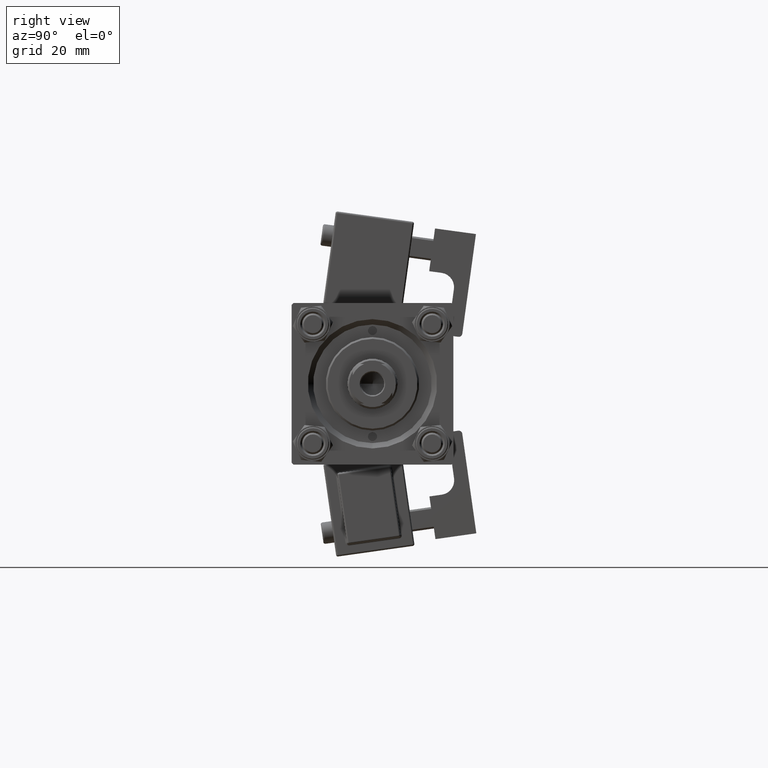
[diagram: clean part render]
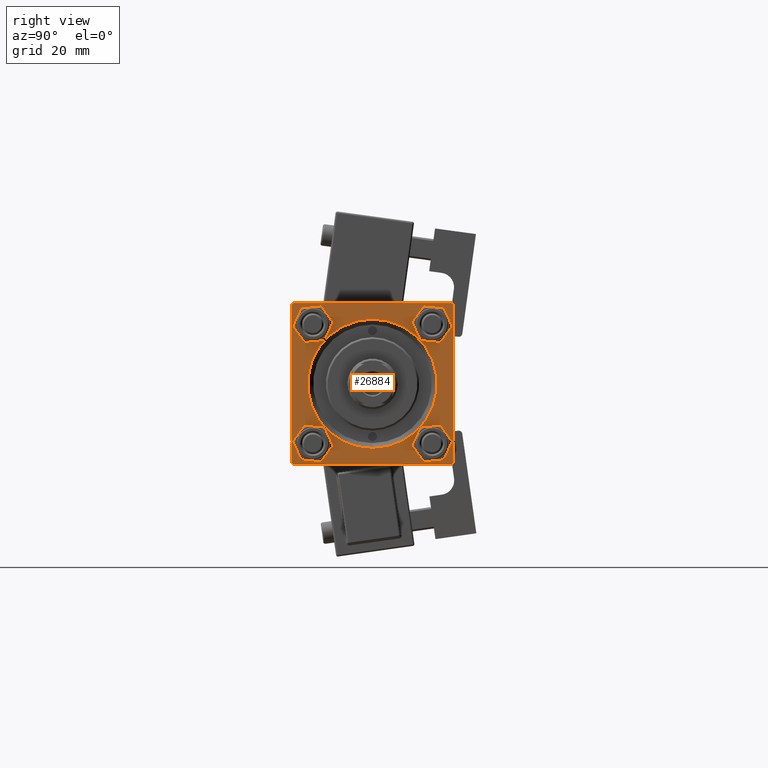
[diagram: same view with one face highlighted and labeled with its STEP entity id]
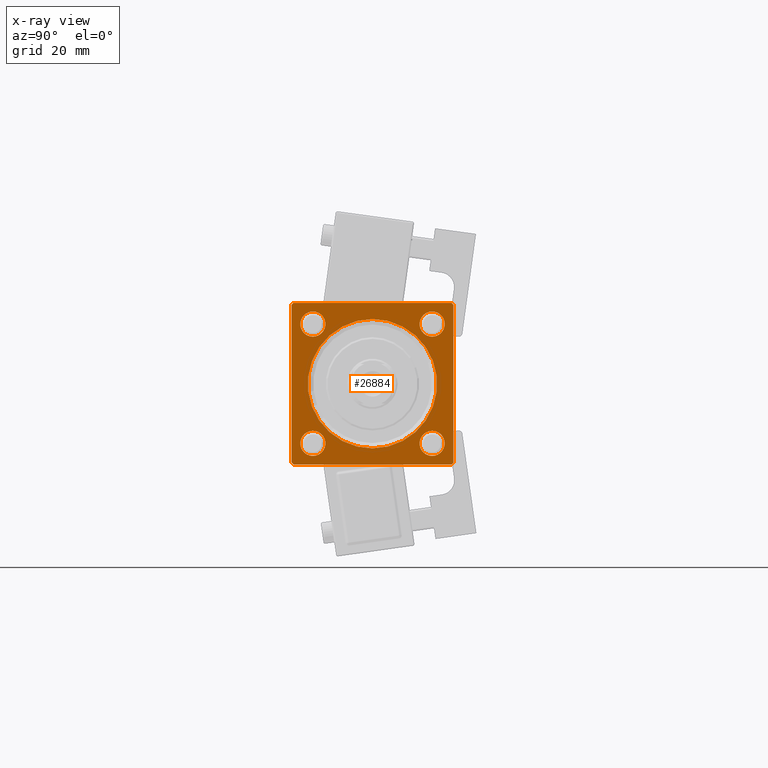
[diagram: x-ray of the same camera — body ghosted, the highlighted face saturated]
A machine part, right view. The second image highlights one B-rep face of the part: STEP entity #26884.
The next image is the same camera in x-ray: the body ghosted, the highlighted face saturated — about 0% of this face is hidden behind the body in this view.
In plain terms, the highlighted planar face has unit normal (-1, 0, 0).
Its self-contained STEP definition (entity closure, byte-faithful):
#205 = LINE ( 'NONE', #24297, #32339 ) ;
#1216 = EDGE_CURVE ( 'NONE', #27357, #33606, #16940, .T. ) ;
#1713 = ORIENTED_EDGE ( 'NONE', *, *, #12166, .T. ) ;
#2265 = LINE ( 'NONE', #51698, #31665 ) ;
#2637 = DIRECTION ( 'NONE',  ( 0.000000000000000000, 0.000000000000000000, -1.000000000000000000 ) ) ;
#2783 = DIRECTION ( 'NONE',  ( 0.000000000000000000, 0.000000000000000000, -1.000000000000000000 ) ) ;
#2899 = CIRCLE ( 'NONE', #21478, 18.00000000000000355 ) ;
#3010 = VERTEX_POINT ( 'NONE', #43632 ) ;
#3663 = VERTEX_POINT ( 'NONE', #22643 ) ;
#3711 = CARTESIAN_POINT ( 'NONE',  ( 123.0000000000000142, -22.49999999999999645, 22.00000000000000711 ) ) ;
#3900 = CARTESIAN_POINT ( 'NONE',  ( 123.0000000000000142, 22.50000000000000355, 21.99999999999997513 ) ) ;
#3919 = ORIENTED_EDGE ( 'NONE', *, *, #32471, .T. ) ;
#4564 = CIRCLE ( 'NONE', #41749, 3.500000000000031086 ) ;
#4748 = DIRECTION ( 'NONE',  ( 0.000000000000000000, 0.000000000000000000, 1.000000000000000000 ) ) ;
#4822 = AXIS2_PLACEMENT_3D ( 'NONE', #26013, #26271, #18317 ) ;
#4923 = VERTEX_POINT ( 'NONE', #49707 ) ;
#5111 = EDGE_LOOP ( 'NONE', ( #21749, #28203 ) ) ;
#5532 = DIRECTION ( 'NONE',  ( -1.000000000000000000, 0.000000000000000000, -0.000000000000000000 ) ) ;
#6380 = VERTEX_POINT ( 'NONE', #3711 ) ;
#6534 = CARTESIAN_POINT ( 'NONE',  ( 123.0000000000000142, 16.59999999999999787, -16.60000000000000497 ) ) ;
#6763 = DIRECTION ( 'NONE',  ( 0.000000000000000000, 0.000000000000000000, 1.000000000000000000 ) ) ;
#7330 = DIRECTION ( 'NONE',  ( 0.000000000000000000, 0.000000000000000000, 1.000000000000000000 ) ) ;
#7448 = LINE ( 'NONE', #23576, #39950 ) ;
#7617 = CARTESIAN_POINT ( 'NONE',  ( 123.0000000000000142, 0.000000000000000000, 0.000000000000000000 ) ) ;
#7912 = LINE ( 'NONE', #40172, #43430 ) ;
#8178 = EDGE_CURVE ( 'NONE', #45108, #33138, #16360, .T. ) ;
#8264 = DIRECTION ( 'NONE',  ( -1.000000000000000000, 0.000000000000000000, -0.000000000000000000 ) ) ;
#8368 = DIRECTION ( 'NONE',  ( -0.000000000000000000, 0.000000000000000000, 1.000000000000000000 ) ) ;
#8862 = EDGE_CURVE ( 'NONE', #33606, #27357, #2899, .T. ) ;
#8964 = VERTEX_POINT ( 'NONE', #11835 ) ;
#9673 = CARTESIAN_POINT ( 'NONE',  ( 123.0000000000000142, -16.59999999999999076, 16.60000000000000853 ) ) ;
#9683 = DIRECTION ( 'NONE',  ( -1.000000000000000000, 0.000000000000000000, -0.000000000000000000 ) ) ;
#9929 = DIRECTION ( 'NONE',  ( 0.000000000000000000, 0.000000000000000000, 1.000000000000000000 ) ) ;
#10331 = ORIENTED_EDGE ( 'NONE', *, *, #33982, .T. ) ;
#10718 = CARTESIAN_POINT ( 'NONE',  ( 123.0000000000000142, 16.59999999999999787, 16.60000000000000497 ) ) ;
#11000 = DIRECTION ( 'NONE',  ( -1.000000000000000000, 0.000000000000000000, -0.000000000000000000 ) ) ;
#11318 = EDGE_CURVE ( 'NONE', #35204, #19802, #26637, .T. ) ;
#11484 = VERTEX_POINT ( 'NONE', #48751 ) ;
#11540 = FACE_OUTER_BOUND ( 'NONE', #28208, .T. ) ;
#11835 = CARTESIAN_POINT ( 'NONE',  ( 123.0000000000000142, -21.99999999999998224, -22.50000000000000000 ) ) ;
#12057 = FACE_BOUND ( 'NONE', #5111, .T. ) ;
#12166 = EDGE_CURVE ( 'NONE', #33138, #45108, #4564, .T. ) ;
#12217 = DIRECTION ( 'NONE',  ( 0.000000000000000000, 0.000000000000000000, 1.000000000000000000 ) ) ;
#12332 = VERTEX_POINT ( 'NONE', #23920 ) ;
#12920 = DIRECTION ( 'NONE',  ( 0.000000000000000000, -0.7071067811865573427, 0.7071067811865378028 ) ) ;
#13891 = EDGE_LOOP ( 'NONE', ( #47781, #39058 ) ) ;
#14433 = LINE ( 'NONE', #18663, #43249 ) ;
#15496 = FACE_BOUND ( 'NONE', #26851, .T. ) ;
#15530 = DIRECTION ( 'NONE',  ( -1.000000000000000000, 0.000000000000000000, -0.000000000000000000 ) ) ;
#16360 = CIRCLE ( 'NONE', #44232, 3.500000000000031086 ) ;
#16771 = DIRECTION ( 'NONE',  ( 0.000000000000000000, 0.000000000000000000, 1.000000000000000000 ) ) ;
#16940 = CIRCLE ( 'NONE', #49038, 18.00000000000000355 ) ;
#17245 = DIRECTION ( 'NONE',  ( 0.000000000000000000, 0.000000000000000000, 1.000000000000000000 ) ) ;
#17780 = EDGE_CURVE ( 'NONE', #3010, #41456, #39622, .T. ) ;
#18317 = DIRECTION ( 'NONE',  ( 0.000000000000000000, 0.000000000000000000, 1.000000000000000000 ) ) ;
#18663 = CARTESIAN_POINT ( 'NONE',  ( 123.0000000000000142, -21.99999999999999645, -22.50000000000000000 ) ) ;
#19187 = CIRCLE ( 'NONE', #4822, 3.500000000000031086 ) ;
#19661 = EDGE_LOOP ( 'NONE', ( #49094, #39878 ) ) ;
#19731 = PLANE ( 'NONE',  #43355 ) ;
#19802 = VERTEX_POINT ( 'NONE', #21472 ) ;
#19993 = FACE_BOUND ( 'NONE', #39065, .T. ) ;
#19994 = CARTESIAN_POINT ( 'NONE',  ( 123.0000000000000142, -16.59999999999999076, -16.60000000000000853 ) ) ;
#20575 = DIRECTION ( 'NONE',  ( -0.000000000000000000, 0.7071067811865573427, 0.7071067811865378028 ) ) ;
#20615 = CARTESIAN_POINT ( 'NONE',  ( 123.0000000000000142, 16.59999999999999787, -13.09999999999997300 ) ) ;
#20717 = AXIS2_PLACEMENT_3D ( 'NONE', #9673, #30563, #37962 ) ;
#21226 = DIRECTION ( 'NONE',  ( -1.000000000000000000, 0.000000000000000000, -0.000000000000000000 ) ) ;
#21472 = CARTESIAN_POINT ( 'NONE',  ( 123.0000000000000142, -16.59999999999999076, 20.10000000000003695 ) ) ;
#21478 = AXIS2_PLACEMENT_3D ( 'NONE', #7617, #15530, #16771 ) ;
#21749 = ORIENTED_EDGE ( 'NONE', *, *, #29574, .T. ) ;
#21763 = VECTOR ( 'NONE', #24640, 1000.000000000000000 ) ;
#22643 = CARTESIAN_POINT ( 'NONE',  ( 123.0000000000000142, -22.49999999999999645, -21.99999999999997868 ) ) ;
#22747 = LINE ( 'NONE', #38874, #31655 ) ;
#23576 = CARTESIAN_POINT ( 'NONE',  ( 123.0000000000000142, -22.49999999999999645, 22.00000000000000711 ) ) ;
#23825 = EDGE_CURVE ( 'NONE', #3663, #8964, #14433, .T. ) ;
#23920 = CARTESIAN_POINT ( 'NONE',  ( 123.0000000000000142, -21.99999999999998224, 22.49999999999999289 ) ) ;
#24297 = CARTESIAN_POINT ( 'NONE',  ( 123.0000000000000142, 22.50000000000000355, -22.00000000000001066 ) ) ;
#24640 = DIRECTION ( 'NONE',  ( 0.000000000000000000, -1.000000000000000000, -7.709882115452476934E-17 ) ) ;
#26013 = CARTESIAN_POINT ( 'NONE',  ( 123.0000000000000142, -16.59999999999999076, 16.60000000000000853 ) ) ;
#26224 = EDGE_CURVE ( 'NONE', #12332, #6380, #7448, .T. ) ;
#26271 = DIRECTION ( 'NONE',  ( -1.000000000000000000, 0.000000000000000000, -0.000000000000000000 ) ) ;
#26335 = CARTESIAN_POINT ( 'NONE',  ( 123.0000000000000142, 0.000000000000000000, 0.000000000000000000 ) ) ;
#26511 = EDGE_CURVE ( 'NONE', #41361, #4923, #205, .T. ) ;
#26637 = CIRCLE ( 'NONE', #20717, 3.500000000000031086 ) ;
#26727 = AXIS2_PLACEMENT_3D ( 'NONE', #19994, #48550, #7330 ) ;
#26851 = EDGE_LOOP ( 'NONE', ( #51549, #45949 ) ) ;
#26884 = ADVANCED_FACE ( 'NONE', ( #12057, #31654, #19993, #15496, #28215, #11540 ), #19731, .F. ) ;
#27197 = CARTESIAN_POINT ( 'NONE',  ( 123.0000000000000142, 0.000000000000000000, -18.00000000000000355 ) ) ;
#27357 = VERTEX_POINT ( 'NONE', #33153 ) ;
#27591 = CARTESIAN_POINT ( 'NONE',  ( 123.0000000000000142, 16.59999999999999787, 16.60000000000000497 ) ) ;
#28203 = ORIENTED_EDGE ( 'NONE', *, *, #36650, .T. ) ;
#28208 = EDGE_LOOP ( 'NONE', ( #10331, #47904, #47506, #41785, #33548, #3919, #50960, #39188 ) ) ;
#28215 = FACE_BOUND ( 'NONE', #13891, .T. ) ;
#28995 = CIRCLE ( 'NONE', #35724, 3.500000000000031086 ) ;
#29131 = DIRECTION ( 'NONE',  ( -0.000000000000000000, -0.7071067811865573427, -0.7071067811865378028 ) ) ;
#29574 = EDGE_CURVE ( 'NONE', #36515, #11484, #28995, .T. ) ;
#30563 = DIRECTION ( 'NONE',  ( -1.000000000000000000, 0.000000000000000000, -0.000000000000000000 ) ) ;
#30592 = DIRECTION ( 'NONE',  ( 0.000000000000000000, 0.7071067811865425767, -0.7071067811865525687 ) ) ;
#30839 = VECTOR ( 'NONE', #51940, 1000.000000000000000 ) ;
#31654 = FACE_BOUND ( 'NONE', #19661, .T. ) ;
#31655 = VECTOR ( 'NONE', #2637, 1000.000000000000000 ) ;
#31665 = VECTOR ( 'NONE', #2783, 1000.000000000000000 ) ;
#32339 = VECTOR ( 'NONE', #20575, 1000.000000000000000 ) ;
#32471 = EDGE_CURVE ( 'NONE', #33630, #49558, #7912, .T. ) ;
#33109 = CARTESIAN_POINT ( 'NONE',  ( 123.0000000000000142, 22.50000000000000355, -22.49999999999999645 ) ) ;
#33123 = CARTESIAN_POINT ( 'NONE',  ( 123.0000000000000142, 22.00000000000000355, -22.49999999999999645 ) ) ;
#33138 = VERTEX_POINT ( 'NONE', #46042 ) ;
#33153 = CARTESIAN_POINT ( 'NONE',  ( 123.0000000000000142, 2.204364238465235822E-15, 18.00000000000000355 ) ) ;
#33548 = ORIENTED_EDGE ( 'NONE', *, *, #46806, .F. ) ;
#33606 = VERTEX_POINT ( 'NONE', #27197 ) ;
#33630 = VERTEX_POINT ( 'NONE', #3900 ) ;
#33982 = EDGE_CURVE ( 'NONE', #6380, #3663, #2265, .T. ) ;
#35204 = VERTEX_POINT ( 'NONE', #48142 ) ;
#35724 = AXIS2_PLACEMENT_3D ( 'NONE', #40968, #5532, #4748 ) ;
#35861 = DIRECTION ( 'NONE',  ( 0.000000000000000000, 0.000000000000000000, 1.000000000000000000 ) ) ;
#36138 = CARTESIAN_POINT ( 'NONE',  ( 123.0000000000000142, 21.99999999999996092, 22.50000000000000355 ) ) ;
#36515 = VERTEX_POINT ( 'NONE', #50178 ) ;
#36650 = EDGE_CURVE ( 'NONE', #11484, #36515, #41886, .T. ) ;
#37622 = CARTESIAN_POINT ( 'NONE',  ( 123.0000000000000142, 16.59999999999999787, -16.60000000000000497 ) ) ;
#37962 = DIRECTION ( 'NONE',  ( 0.000000000000000000, 0.000000000000000000, 1.000000000000000000 ) ) ;
#37964 = DIRECTION ( 'NONE',  ( -1.000000000000000000, 0.000000000000000000, -0.000000000000000000 ) ) ;
#38874 = CARTESIAN_POINT ( 'NONE',  ( 123.0000000000000142, 22.50000000000000355, 22.50000000000000355 ) ) ;
#39058 = ORIENTED_EDGE ( 'NONE', *, *, #1216, .T. ) ;
#39065 = EDGE_LOOP ( 'NONE', ( #1713, #39594 ) ) ;
#39188 = ORIENTED_EDGE ( 'NONE', *, *, #26224, .T. ) ;
#39594 = ORIENTED_EDGE ( 'NONE', *, *, #8178, .T. ) ;
#39622 = CIRCLE ( 'NONE', #46384, 3.500000000000031086 ) ;
#39878 = ORIENTED_EDGE ( 'NONE', *, *, #41618, .T. ) ;
#39950 = VECTOR ( 'NONE', #29131, 1000.000000000000000 ) ;
#40172 = CARTESIAN_POINT ( 'NONE',  ( 123.0000000000000142, 21.99999999999996092, 22.50000000000000355 ) ) ;
#40439 = CARTESIAN_POINT ( 'NONE',  ( 123.0000000000000142, 16.59999999999999787, 20.10000000000003340 ) ) ;
#40968 = CARTESIAN_POINT ( 'NONE',  ( 123.0000000000000142, -16.59999999999999076, -16.60000000000000853 ) ) ;
#41361 = VERTEX_POINT ( 'NONE', #33123 ) ;
#41456 = VERTEX_POINT ( 'NONE', #20615 ) ;
#41618 = EDGE_CURVE ( 'NONE', #41456, #3010, #51349, .T. ) ;
#41749 = AXIS2_PLACEMENT_3D ( 'NONE', #10718, #9683, #6763 ) ;
#41785 = ORIENTED_EDGE ( 'NONE', *, *, #26511, .T. ) ;
#41886 = CIRCLE ( 'NONE', #26727, 3.500000000000031086 ) ;
#43249 = VECTOR ( 'NONE', #30592, 999.9999999999998863 ) ;
#43355 = AXIS2_PLACEMENT_3D ( 'NONE', #52005, #44587, #8368 ) ;
#43430 = VECTOR ( 'NONE', #12920, 1000.000000000000000 ) ;
#43632 = CARTESIAN_POINT ( 'NONE',  ( 123.0000000000000142, 16.59999999999999787, -20.10000000000003340 ) ) ;
#43998 = LINE ( 'NONE', #51158, #30839 ) ;
#44232 = AXIS2_PLACEMENT_3D ( 'NONE', #27591, #8264, #12217 ) ;
#44587 = DIRECTION ( 'NONE',  ( -1.000000000000000000, 0.000000000000000000, -0.000000000000000000 ) ) ;
#44774 = EDGE_CURVE ( 'NONE', #41361, #8964, #45270, .T. ) ;
#45108 = VERTEX_POINT ( 'NONE', #40439 ) ;
#45270 = LINE ( 'NONE', #33109, #21763 ) ;
#45949 = ORIENTED_EDGE ( 'NONE', *, *, #51345, .T. ) ;
#46028 = EDGE_CURVE ( 'NONE', #49558, #12332, #43998, .T. ) ;
#46042 = CARTESIAN_POINT ( 'NONE',  ( 123.0000000000000142, 16.59999999999999787, 13.09999999999997300 ) ) ;
#46292 = AXIS2_PLACEMENT_3D ( 'NONE', #6534, #11000, #35861 ) ;
#46384 = AXIS2_PLACEMENT_3D ( 'NONE', #37622, #21226, #17245 ) ;
#46806 = EDGE_CURVE ( 'NONE', #33630, #4923, #22747, .T. ) ;
#47506 = ORIENTED_EDGE ( 'NONE', *, *, #44774, .F. ) ;
#47781 = ORIENTED_EDGE ( 'NONE', *, *, #8862, .T. ) ;
#47904 = ORIENTED_EDGE ( 'NONE', *, *, #23825, .T. ) ;
#48142 = CARTESIAN_POINT ( 'NONE',  ( 123.0000000000000142, -16.59999999999999076, 13.09999999999997655 ) ) ;
#48550 = DIRECTION ( 'NONE',  ( -1.000000000000000000, 0.000000000000000000, -0.000000000000000000 ) ) ;
#48751 = CARTESIAN_POINT ( 'NONE',  ( 123.0000000000000142, -16.59999999999999076, -13.09999999999997655 ) ) ;
#49038 = AXIS2_PLACEMENT_3D ( 'NONE', #26335, #37964, #9929 ) ;
#49094 = ORIENTED_EDGE ( 'NONE', *, *, #17780, .T. ) ;
#49558 = VERTEX_POINT ( 'NONE', #36138 ) ;
#49707 = CARTESIAN_POINT ( 'NONE',  ( 123.0000000000000142, 22.50000000000000355, -21.99999999999999645 ) ) ;
#50178 = CARTESIAN_POINT ( 'NONE',  ( 123.0000000000000142, -16.59999999999999076, -20.10000000000003695 ) ) ;
#50960 = ORIENTED_EDGE ( 'NONE', *, *, #46028, .T. ) ;
#51158 = CARTESIAN_POINT ( 'NONE',  ( 123.0000000000000142, 22.50000000000000355, 22.50000000000000355 ) ) ;
#51345 = EDGE_CURVE ( 'NONE', #19802, #35204, #19187, .T. ) ;
#51349 = CIRCLE ( 'NONE', #46292, 3.500000000000031086 ) ;
#51549 = ORIENTED_EDGE ( 'NONE', *, *, #11318, .T. ) ;
#51698 = CARTESIAN_POINT ( 'NONE',  ( 123.0000000000000142, -22.49999999999999645, 22.49999999999999289 ) ) ;
#51940 = DIRECTION ( 'NONE',  ( 0.000000000000000000, -1.000000000000000000, -2.312964634635742957E-16 ) ) ;
#52005 = CARTESIAN_POINT ( 'NONE',  ( 123.0000000000000142, 0.000000000000000000, 0.000000000000000000 ) ) ;